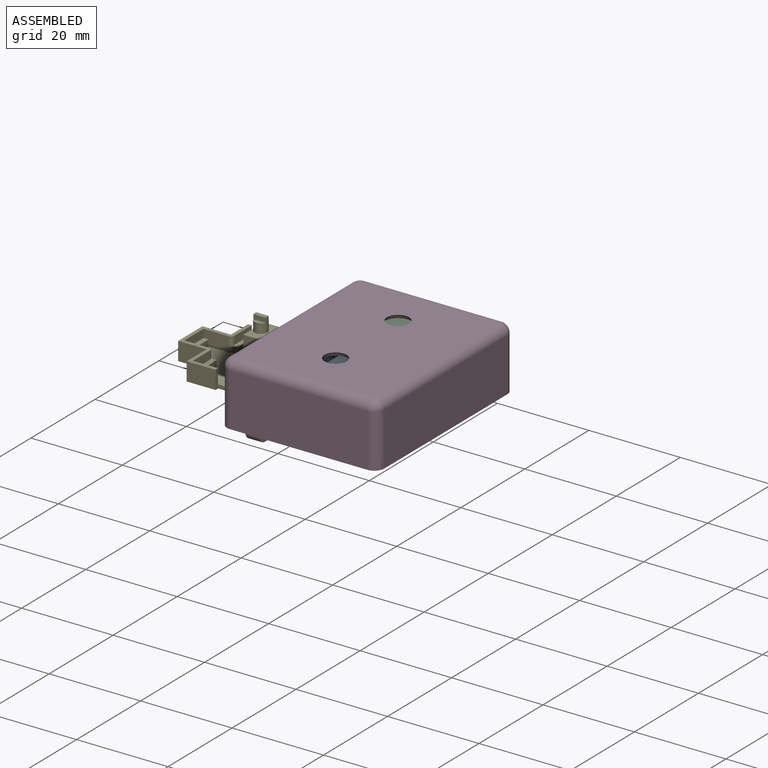
[diagram: assembled view]
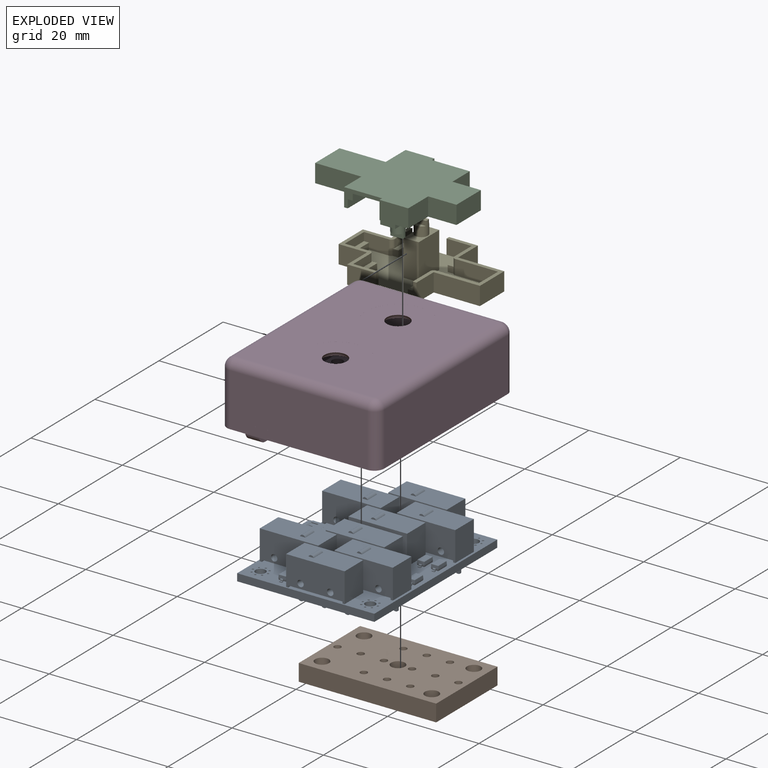
[diagram: exploded view]
GUIDED TOUR — FREECAD ASSEMBLY "thumb-cluster"

This assembly has 5 components, labeled P0..P4 below (a component is one placed body or linked part; the same part can appear more than once), held together by 0 modeled joints plus 7 derived contact edges. A joint is a constraint between two components; its type names the relative motion it leaves free:
  CONTACT — a derived adjacency edge — the two components touch in the source model (clearance under 2% of the assembly's diagonal); it is measured from the geometry, not a modeled constraint.
Axis/direction vectors are unit vectors and 'through' points are millimeter coordinates, both in the assembly's world frame.

MATES
  1. CONTACT "contact_0_1": P0 <-> P1, contact direction (0.000, 0.000, -1.000) through (16.36, -8.97, 0.00) mm (derived from contact, not a modeled constraint)
  2. CONTACT "contact_0_2": P0 <-> P2, contact direction (0.185, 0.982, -0.032) through (15.94, -8.46, 0.00) mm (derived from contact, not a modeled constraint)
  3. CONTACT "contact_0_3": P0 <-> P3, contact direction (0.000, 0.000, 1.000) through (2.78, -4.70, 0.00) mm (derived from contact, not a modeled constraint)
  4. CONTACT "contact_1_2": P1 <-> P2, contact direction (0.000, 0.000, 1.000) through (14.66, -8.14, 0.00) mm (derived from contact, not a modeled constraint)
  5. CONTACT "contact_1_3": P1 <-> P3, contact direction (-0.185, -0.982, 0.032) through (4.30, -2.42, -2.45) mm (derived from contact, not a modeled constraint)
  6. CONTACT "contact_2_3": P2 <-> P3, contact direction (-0.185, -0.982, 0.032) through (9.52, -13.56, 8.85) mm (derived from contact, not a modeled constraint)
  7. CONTACT "contact_3_4": P3 <-> P4, contact direction (-0.977, 0.180, -0.117) through (0.64, -5.93, -8.57) mm (derived from contact, not a modeled constraint)

ASSEMBLY ORDER
  1. P3 — the base component [order heuristic]
  2. P0 — core [order heuristic]
  3. P2 — core [order heuristic]
  4. P1 — core [order heuristic]
  5. P4 [order verified]
Order-tag legend:
  [order verified] — this step's position reverses a verified removal order: the component was checked to insert without passing through the ones already placed.
  [order heuristic] — the first 4 components form the assembly's core: parts whose collision-free extraction could not be verified, listed in mate-graph order.

Of the 5 components, 3 carry a construction recipe — the FreeCAD feature program (sketches with constraints, then the solid features that consume them) that regenerates the part from scratch, quoted from this document or from the linked companion document it references; the rest are supplied as boundary geometry only. The tour below walks the components in assembly order: each is shown spotlighted twice — in the assembled view, then in the exploded view, where a leader line traces a displaced component back to its assembled socket (components that stay in place when exploded have no leader line; saturated green if recipe-attached, orange if geometry-only; every other component desaturated gray) — followed by its recipe or geometry summary and the mates that hold it.
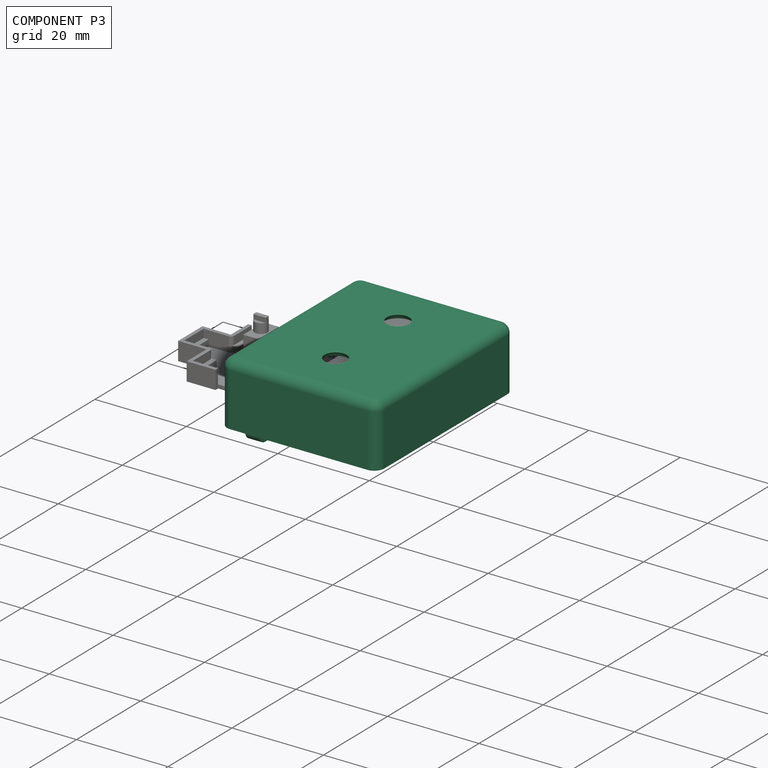
[diagram: component P3 — assembled]
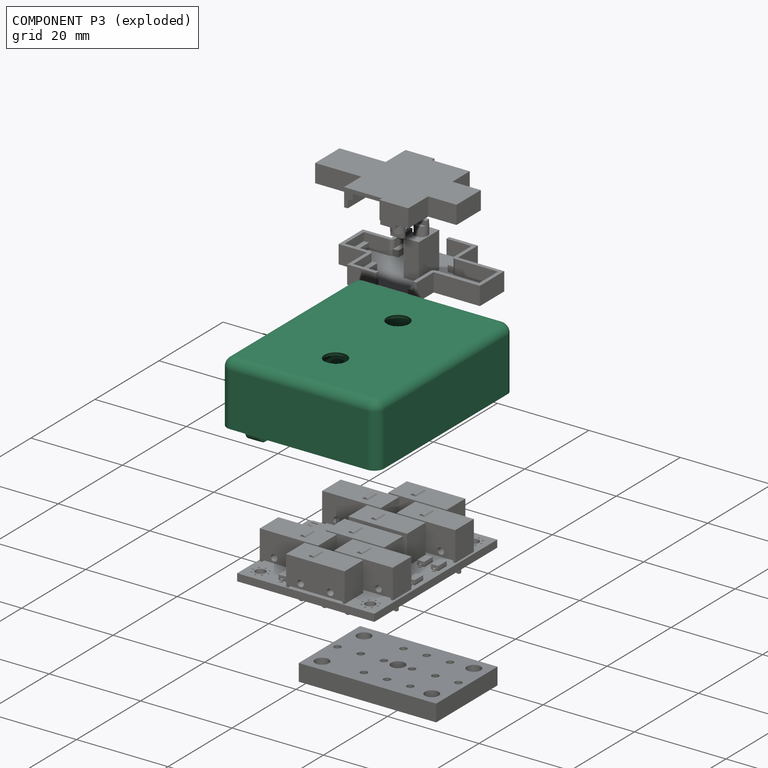
[diagram: component P3 — exploded]
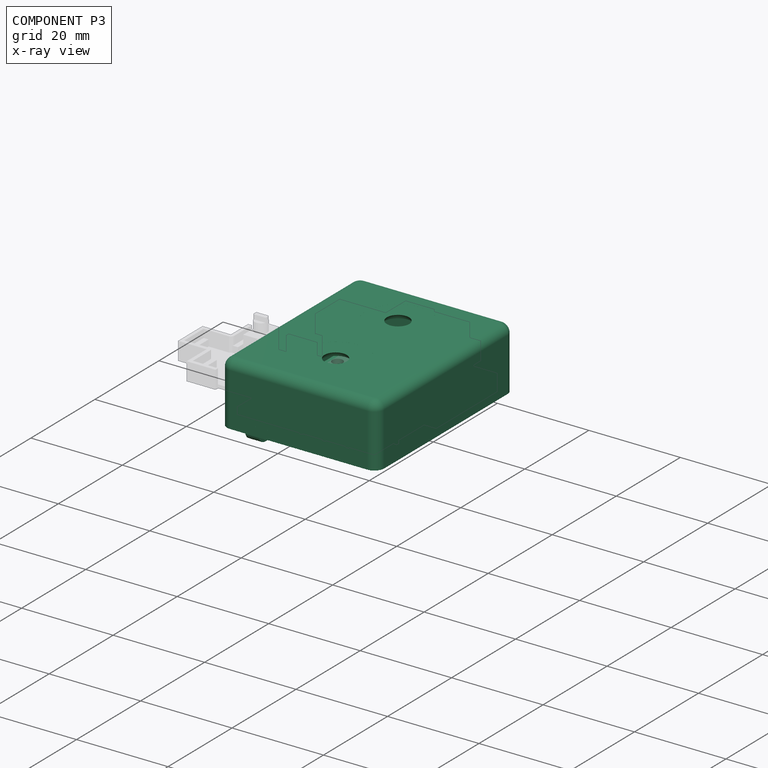
[diagram: component P3 — x-ray view]
COMPONENT P3 — recipe-attached ("case", modeled in this document).
Held by: resting contact with P0 (derived edge); resting contact with P1 (derived edge); resting contact with P2 (derived edge); resting contact with P4 (derived edge).
Construction recipe (the document's own serialized feature program — sketch geometry with constraints, then the solid features built on it; lengths are millimeters unless a unit is written):

FEATURE [PartDesign::SubShapeBinder] Binder
  BindCopyOnChange = 0
  BindMode = 0
  ClaimChildren = false
  Context = -> Part [Body.Binder.]
  Fuse = false
  MakeFace = true
  OffsetFill = false
  OffsetIntersection = false
  OffsetJoinType = 0
  OffsetOpenResult = false
  PartialLoad = false
  Refine = true
  Relative = true
  Support = -> [Board_58ce[Board_Geoms_58ce.Pcb_58ce.Face68]]
  _Version = 2
FEATURE [Sketcher::SketchObject] Sketch001
  ArcFitTolerance = 1e-06
  ExternalGeometry = -> [Binder]
  FullyConstrained = true
  MakeInternals = false
  MapMode = 5
  Placement = pos=(0,0,-3.6) rot=(1,0,0;3.14159rad)
  sketch-geometry (28):
    g0: Circle CenterX=11.82 CenterY=35.2 CenterZ=0 NormalX=0 NormalY=0 NormalZ=1 AngleXU=0 Radius=1.15
    g1: Circle CenterX=16.9 CenterY=35.2 CenterZ=0 NormalX=0 NormalY=0 NormalZ=1 AngleXU=0 Radius=1.15
    g2: Circle CenterX=21.98 CenterY=35.2 CenterZ=0 NormalX=0 NormalY=0 NormalZ=1 AngleXU=0 Radius=1.15
    g3: Circle CenterX=1.72 CenterY=29 CenterZ=0 NormalX=0 NormalY=0 NormalZ=1 AngleXU=0 Radius=1.15
    g4: Circle CenterX=6.8 CenterY=29 CenterZ=0 NormalX=0 NormalY=0 NormalZ=1 AngleXU=0 Radius=1.15
    g5: Circle CenterX=11.88 CenterY=29 CenterZ=0 NormalX=0 NormalY=0 NormalZ=1 AngleXU=0 Radius=1.15
    g6: Circle CenterX=18.02 CenterY=29 CenterZ=0 NormalX=0 NormalY=0 NormalZ=1 AngleXU=0 Radius=1.15
    g7: Circle CenterX=23.1 CenterY=29 CenterZ=0 NormalX=0 NormalY=0 NormalZ=1 AngleXU=0 Radius=1.15
    g8: Circle CenterX=28.18 CenterY=29 CenterZ=0 NormalX=0 NormalY=0 NormalZ=1 AngleXU=0 Radius=1.15
    g9: Circle CenterX=11.82 CenterY=22.8 CenterZ=0 NormalX=0 NormalY=0 NormalZ=1 AngleXU=0 Radius=1.15
    g10: Circle CenterX=16.9 CenterY=22.8 CenterZ=0 NormalX=0 NormalY=0 NormalZ=1 AngleXU=0 Radius=1.15
    g11: Circle CenterX=21.98 CenterY=22.8 CenterZ=0 NormalX=0 NormalY=0 NormalZ=1 AngleXU=0 Radius=1.15
    g12: Circle CenterX=11.85 CenterY=15.75 CenterZ=0 NormalX=0 NormalY=0 NormalZ=1 AngleXU=0 Radius=1.15
    g13: Circle CenterX=16.93 CenterY=15.75 CenterZ=0 NormalX=0 NormalY=0 NormalZ=1 AngleXU=0 Radius=1.15
    g14: Circle CenterX=22.01 CenterY=15.75 CenterZ=0 NormalX=0 NormalY=0 NormalZ=1 AngleXU=0 Radius=1.15
    g15: Circle CenterX=1.75 CenterY=9.55 CenterZ=0 NormalX=0 NormalY=0 NormalZ=1 AngleXU=0 Radius=1.15
    g16: Circle CenterX=6.83 CenterY=9.55 CenterZ=0 NormalX=0 NormalY=0 NormalZ=1 AngleXU=0 Radius=1.15
    g17: Circle CenterX=11.91 CenterY=9.55 CenterZ=0 NormalX=0 NormalY=0 NormalZ=1 AngleXU=0 Radius=1.15
    g18: Circle CenterX=18.05 CenterY=9.55 CenterZ=0 NormalX=0 NormalY=0 NormalZ=1 AngleXU=0 Radius=1.15
    g19: Circle CenterX=23.13 CenterY=9.55 CenterZ=0 NormalX=0 NormalY=0 NormalZ=1 AngleXU=0 Radius=1.15
    g20: Circle CenterX=28.21 CenterY=9.55 CenterZ=0 NormalX=0 NormalY=0 NormalZ=1 AngleXU=0 Radius=1.15
    g21: Circle CenterX=22.01 CenterY=3.35 CenterZ=0 NormalX=0 NormalY=0 NormalZ=1 AngleXU=0 Radius=1.15
    g22: Circle CenterX=16.93 CenterY=3.35 CenterZ=0 NormalX=0 NormalY=0 NormalZ=1 AngleXU=0 Radius=1.15
    g23: Circle CenterX=11.85 CenterY=3.35 CenterZ=0 NormalX=0 NormalY=0 NormalZ=1 AngleXU=0 Radius=1.15
    g24: Circle CenterX=3 CenterY=35.3667 CenterZ=0 NormalX=0 NormalY=0 NormalZ=1 AngleXU=0 Radius=1.25
    g25: Circle CenterX=27 CenterY=35.3667 CenterZ=0 NormalX=0 NormalY=0 NormalZ=1 AngleXU=0 Radius=1.25
    g26: Circle CenterX=27 CenterY=3.01673 CenterZ=0 NormalX=0 NormalY=0 NormalZ=1 AngleXU=0 Radius=1.25
    g27: Circle CenterX=2.98327 CenterY=3.01673 CenterZ=0 NormalX=0 NormalY=0 NormalZ=1 AngleXU=0 Radius=1.25
  constraints (56):
    c: Coincident(g0,g-3)
    c: Coincident(g1,g-4)
    c: Coincident(g2,g-5)
    c: Coincident(g3,g-11)
    c: Coincident(g4,g-10)
    c: Coincident(g5,g-9)
    c: Coincident(g6,g-8)
    c: Coincident(g7,g-7)
    c: Coincident(g8,g-6)
    c: Coincident(g9,g-14)
    c: Coincident(g10,g-13)
    c: Coincident(g11,g-12)
    c: Coincident(g12,g-17)
    c: Coincident(g13,g-16)
    c: Coincident(g14,g-15)
    c: Coincident(g15,g-18)
    c: Coincident(g16,g-19)
    c: Coincident(g17,g-20)
    c: Coincident(g18,g-21)
    c: Coincident(g19,g-22)
    c: Coincident(g20,g-23)
    c: Coincident(g21,g-24)
    c: Coincident(g22,g-25)
    c: Coincident(g23,g-26)
    c: Coincident(g24,g-27)
    c: Coincident(g25,g-28)
    c: Coincident(g26,g-29)
    c: Coincident(g27,g-30)
    c: Diameter(g24) = 2.5
    c: Equal(g24,g25)
    c: Equal(g25,g26)
    c: Equal(g26,g27)
    c: Diameter(g0) = 2.3
    c: Equal(g0,g1)
    c: Equal(g1,g2)
    c: Equal(g2,g8)
    c: Equal(g8,g7)
    c: Equal(g7,g6)
    c: Equal(g6,g5)
    c: Equal(g5,g4)
    c: Equal(g4,g3)
    c: Equal(g3,g9)
    c: Equal(g9,g10)
    c: Equal(g10,g11)
    c: Equal(g0,g12)
    c: Equal(g12,g13)
    c: Equal(g13,g14)
    c: Equal(g14,g20)
    c: Equal(g20,g19)
    c: Equal(g19,g18)
    c: Equal(g18,g17)
    c: Equal(g17,g16)
    c: Equal(g16,g15)
    c: Equal(g15,g23)
    c: Equal(g23,g22)
    c: Equal(g22,g21)
FEATURE [PartDesign::SubShapeBinder] Binder001
  BindCopyOnChange = 0
  BindMode = 0
  ClaimChildren = false
  Context = -> Part [Part001.Body001.Binder001.]
  Fuse = false
  MakeFace = true
  OffsetFill = false
  OffsetIntersection = false
  OffsetJoinType = 0
  OffsetOpenResult = false
  PartialLoad = false
  Refine = true
  Relative = true
  Support = -> [Board_58ce[Board_Geoms_58ce.Pcb_58ce.Face68]]
  _Version = 2
FEATURE [Sketcher::SketchObject] Sketch009
  ArcFitTolerance = 1e-06
  AttacherType = Attacher::AttachEngine3D
  FullyConstrained = false
  MakeInternals = false
  MapMode = 5
  Placement = pos=(0,0,-2) rot=(1,0,0;3.14159rad)
  sketch-geometry (4):
    g0: LineSegment StartX=-2.2 StartY=5.91721 StartZ=0 EndX=0.8 EndY=5.91721 EndZ=0
    g1: LineSegment StartX=0.8 StartY=32.7618 StartZ=0 EndX=-2.2 EndY=32.7618 EndZ=0
    g2: LineSegment StartX=0.8 StartY=32.7618 StartZ=0 EndX=0.8 EndY=5.91721 EndZ=0
    g3: LineSegment StartX=-2.2 StartY=5.91721 StartZ=0 EndX=-2.2 EndY=32.7618 EndZ=0
  constraints (10):
    c: Horizontal(g0)
    c: Horizontal(g1)
    c: Coincident(g2,g1)
    c: Coincident(g2,g0)
    c: Vertical(g2)
    c: PointOnObject(g0,g-3)
    c: Coincident(g3,g0)
    c: Coincident(g3,g1)
    c: Vertical(g3)
    c: DistanceX(g0,g0) = 3
FEATURE [Sketcher::SketchObject] Sketch023
  ArcFitTolerance = 1e-06
  FullyConstrained = false
  MakeInternals = false
  Placement = pos=(0,0,0) rot=(0,0,-1;3.14159rad)
  sketch-geometry (8):
    g0: LineSegment StartX=-4e-16 StartY=-2.1 StartZ=0 EndX=-30 EndY=-2.1 EndZ=0
    g1: ArcOfCircle CenterX=-30 CenterY=3.6e-15 CenterZ=0 NormalX=0 NormalY=0 NormalZ=1 AngleXU=1.5708 Radius=2.1 StartAngle=1.5708 EndAngle=3.14159
    g2: LineSegment StartX=-32.1 StartY=4.1e-15 StartZ=0 EndX=-32.1 EndY=38.4 EndZ=0
    g3: ArcOfCircle CenterX=-30 CenterY=38.4 CenterZ=0 NormalX=0 NormalY=0 NormalZ=1 AngleXU=-1e-16 Radius=2.1 StartAngle=1.5708 EndAngle=3.14159
    g4: LineSegment StartX=-30 StartY=40.5 StartZ=0 EndX=3.6e-15 EndY=40.5 EndZ=0
    g5: ArcOfCircle CenterX=7.1e-15 CenterY=38.4 CenterZ=0 NormalX=0 NormalY=0 NormalZ=1 AngleXU=-1.5708 Radius=2.1 StartAngle=1.5708 EndAngle=3.14159
    g6: LineSegment StartX=2.1 StartY=38.4 StartZ=0 EndX=2.1 EndY=0 EndZ=0
    g7: ArcOfCircle CenterX=0 CenterY=0 CenterZ=0 NormalX=0 NormalY=0 NormalZ=1 AngleXU=3.14159 Radius=2.1 StartAngle=1.5708 EndAngle=3.14159
  constraints (12):
    c: Horizontal(g0)
    c: Coincident(g0,g1)
    c: Coincident(g1,g2)
    c: Vertical(g2)
    c: Coincident(g2,g3)
    c: Coincident(g3,g4)
    c: Horizontal(g4)
    c: Coincident(g4,g5)
    c: Coincident(g5,g6)
    c: Vertical(g6)
    c: Coincident(g6,g7)
    c: Coincident(g7,g0)
FEATURE [Sketcher::SketchObject] Sketch024
  ArcFitTolerance = 1e-06
  FullyConstrained = false
  MakeInternals = false
  Placement = pos=(0,0,0) rot=(0,0,-1;3.14159rad)
  sketch-geometry (8):
    g0: LineSegment StartX=-4e-16 StartY=-2.2 StartZ=0 EndX=-30 EndY=-2.2 EndZ=0
    g1: ArcOfCircle CenterX=-30 CenterY=3.6e-15 CenterZ=0 NormalX=0 NormalY=0 NormalZ=1 AngleXU=1.5708 Radius=2.2 StartAngle=1.5708 EndAngle=3.14159
    g2: LineSegment StartX=-32.2 StartY=4.1e-15 StartZ=0 EndX=-32.2 EndY=38.4 EndZ=0
    g3: ArcOfCircle CenterX=-30 CenterY=38.4 CenterZ=0 NormalX=0 NormalY=0 NormalZ=1 AngleXU=-1e-16 Radius=2.2 StartAngle=1.5708 EndAngle=3.14159
    g4: LineSegment StartX=-30 StartY=40.6 StartZ=0 EndX=3.6e-15 EndY=40.6 EndZ=0
    g5: ArcOfCircle CenterX=7.1e-15 CenterY=38.4 CenterZ=0 NormalX=0 NormalY=0 NormalZ=1 AngleXU=-1.5708 Radius=2.2 StartAngle=1.5708 EndAngle=3.14159
    g6: LineSegment StartX=2.2 StartY=38.4 StartZ=0 EndX=2.2 EndY=0 EndZ=0
    g7: ArcOfCircle CenterX=0 CenterY=0 CenterZ=0 NormalX=0 NormalY=0 NormalZ=1 AngleXU=3.14159 Radius=2.2 StartAngle=1.5708 EndAngle=3.14159
  constraints (12):
    c: Horizontal(g0)
    c: Coincident(g0,g1)
    c: Coincident(g1,g2)
    c: Vertical(g2)
    c: Coincident(g2,g3)
    c: Coincident(g3,g4)
    c: Horizontal(g4)
    c: Coincident(g4,g5)
    c: Coincident(g5,g6)
    c: Vertical(g6)
    c: Coincident(g6,g7)
    c: Coincident(g7,g0)
FEATURE [PartDesign::Pad] Pad012
  Direction = (0,0,1)
  Length = 11.603
  Length2 = 10
  Placement = pos=(0,0,0) rot=(0,0,-1;3.14159rad)
  Profile = -> Sketch024
  ReferenceAxis = -> Sketch024 [N_Axis]
  Refine = true
  Suppressed = false
  Type = 0
  expr: Length = <<vars>>#VarSet.Base_recess_height + <<vars>>#VarSet.pcb_thickness
FEATURE [PartDesign::Thickness] Thickness001
  Base = -> Pad012 [Face9]
  BaseFeature = -> Pad012
  Intersection = false
  Join = 0
  Mode = 0
  Refine = true
  Reversed = true
  SupportTransform = false
  Suppressed = false
  Value = 2
FEATURE [Sketcher::SketchObject] Sketch003
  ArcFitTolerance = 1e-06
  AttacherType = Attacher::AttachEngine3D
  AttachmentSupport = -> [Thickness001]
  ExternalGeometry = -> [Binder001]
  FullyConstrained = true
  MakeInternals = false
  MapMode = 5
  Placement = pos=(0,0,9.603) rot=(1,0,0;3.14159rad)
  sketch-geometry (8):
    g0: Circle CenterX=3 CenterY=35.3667 CenterZ=0 NormalX=0 NormalY=0 NormalZ=1 AngleXU=0 Radius=1.7
    g1: Circle CenterX=27 CenterY=35.3667 CenterZ=0 NormalX=0 NormalY=0 NormalZ=1 AngleXU=0 Radius=1.7
    g2: Circle CenterX=27 CenterY=3.01673 CenterZ=0 NormalX=0 NormalY=0 NormalZ=1 AngleXU=0 Radius=1.7
    g3: Circle CenterX=2.98327 CenterY=3.01673 CenterZ=0 NormalX=0 NormalY=0 NormalZ=1 AngleXU=0 Radius=1.7
    g4: Circle CenterX=3 CenterY=35.3667 CenterZ=0 NormalX=0 NormalY=0 NormalZ=1 AngleXU=0 Radius=3
    g5: Circle CenterX=27 CenterY=35.3667 CenterZ=0 NormalX=0 NormalY=0 NormalZ=1 AngleXU=0 Radius=3
    g6: Circle CenterX=27 CenterY=3.01673 CenterZ=0 NormalX=0 NormalY=0 NormalZ=1 AngleXU=0 Radius=3
    g7: Circle CenterX=2.98327 CenterY=3.01673 CenterZ=0 NormalX=0 NormalY=0 NormalZ=1 AngleXU=0 Radius=3
  constraints (16):
    c: Coincident(g0,g-3)
    c: Coincident(g1,g-4)
    c: Coincident(g2,g-5)
    c: Coincident(g3,g-6)
    c: Diameter(g0) = 3.4
    c: Equal(g0,g1)
    c: Equal(g1,g2)
    c: Equal(g2,g3)
    c: Diameter(g4) = 6
    c: Coincident(g4,g0)
    c: Diameter(g5) = 6
    c: Coincident(g5,g1)
    c: Diameter(g6) = 6
    c: Coincident(g6,g2)
    c: Diameter(g7) = 6
    c: Coincident(g7,g3)
FEATURE [PartDesign::Pad] Pad002
  BaseFeature = -> Thickness001
  Direction = (0,0,-1)
  Length = 8.003
  Length2 = 10
  Profile = -> Sketch003
  ReferenceAxis = -> Sketch003 [N_Axis]
  Refine = true
  Suppressed = false
  Type = 0
  expr: Length = <<vars>>#VarSet.Base_recess_height - <<vars>>#VarSet.wall_thickness
FEATURE [Sketcher::SketchObject] Sketch004
  ArcFitTolerance = 1e-06
  AttacherType = Attacher::AttachEngine3D
  AttachmentSupport = -> [Pad002]
  ExternalGeometry = -> [Binder001]
  FullyConstrained = true
  MakeInternals = false
  MapMode = 5
  Placement = pos=(0,0,11.603) rot=(0,0,1;0rad)
  sketch-geometry (4):
    g0: Circle CenterX=14.98 CenterY=-9.55 CenterZ=0 NormalX=0 NormalY=0 NormalZ=1 AngleXU=0 Radius=6.95
    g1: Circle CenterX=14.95 CenterY=-29 CenterZ=0 NormalX=0 NormalY=0 NormalZ=1 AngleXU=0 Radius=6.95
    g2: GeomPoint X=14.98 Y=-9.55 Z=0
    g3: GeomPoint X=14.95 Y=-29 Z=0
  constraints (6):
    c: Diameter(g0) = 13.9
    c: Coincident(g0,g-3)
    c: Coincident(g1,g-4)
    c: Coincident(g2,g0)
    c: Coincident(g3,g1)
    c: Equal(g1,g0)
FEATURE [PartDesign::Pocket] Pocket001
  BaseFeature = -> Pad002
  Direction = (0,0,-1)
  Length = 5
  Length2 = 5
  Profile = -> Sketch004
  ReferenceAxis = -> Sketch004 [N_Axis]
  Refine = true
  Suppressed = false
  Type = 0
FEATURE [Sketcher::SketchObject] Sketch005
  ArcFitTolerance = 1e-06
  AttacherType = Attacher::AttachEngine3D
  AttachmentSupport = -> [Pocket001]
  FullyConstrained = false
  MakeInternals = false
  MapMode = 5
  Placement = pos=(-2.2,0,0) rot=(0.57735,-0.57735,-0.57735;2.0944rad)
  sketch-geometry (8):
    g0: LineSegment StartX=14.9395 StartY=0 StartZ=0 EndX=23.7488 EndY=0 EndZ=0
    g1: LineSegment StartX=23.7488 StartY=0 StartZ=0 EndX=23.7488 EndY=3.27657 EndZ=0
    g2: LineSegment StartX=22.6841 StartY=4.34131 StartZ=0 EndX=16.0197 EndY=4.34131 EndZ=0
    g3: LineSegment StartX=14.9395 StartY=3.26112 StartZ=0 EndX=14.9395 EndY=0 EndZ=0
    g4: ArcOfCircle CenterX=16.0197 CenterY=3.26112 CenterZ=0 NormalX=0 NormalY=0 NormalZ=1 AngleXU=0 Radius=1.08019 StartAngle=1.5708 EndAngle=3.14159
    g5: GeomPoint [constr] X=14.9395 Y=4.34131 Z=0
    g6: ArcOfCircle CenterX=22.6841 CenterY=3.27657 CenterZ=0 NormalX=0 NormalY=0 NormalZ=1 AngleXU=0 Radius=1.06474 StartAngle=0 EndAngle=1.5708
    g7: GeomPoint [constr] X=23.7488 Y=4.34131 Z=0
  constraints (15):
    c: Coincident(g0,g1)
    c: Coincident(g3,g0)
    c: Horizontal(g0)
    c: Horizontal(g2)
    c: Vertical(g1)
    c: Vertical(g3)
    c: PointOnObject(g0,g-1)
    c: PointOnObject(g5,g2)
    c: PointOnObject(g5,g3)
    c: Tangent(g2,g4) = -1.5708
    c: Tangent(g3,g4) = -1.5708
    c: PointOnObject(g7,g1)
    c: PointOnObject(g7,g2)
    c: Tangent(g1,g6) = -1.5708
    c: Tangent(g2,g6) = -1.5708
FEATURE [PartDesign::Pocket] Pocket002
  BaseFeature = -> Pocket001
  Direction = (1,0,0)
  Length = 2
  Length2 = 5
  Profile = -> Sketch005
  ReferenceAxis = -> Sketch005 [N_Axis]
  Refine = true
  Suppressed = false
  Type = 0
FEATURE [PartDesign::Fillet] Fillet
  Base = -> Pocket002 [Edge28]
  BaseFeature = -> Pocket002
  Radius = 2
  Refine = true
  SupportTransform = false
  Suppressed = false
  UseAllEdges = false
FEATURE [PartDesign::Chamfer] Chamfer001
  Angle = 45
  Base = -> Fillet [Edge38]
  BaseFeature = -> Fillet
  ChamferType = 0
  FlipDirection = false
  Refine = true
  Size = 1
  Size2 = 1
  SupportTransform = false
  Suppressed = false
  UseAllEdges = false
FEATURE [Sketcher::SketchObject] Sketch022
  ArcFitTolerance = 1e-06
  AttachmentSupport = -> [Pad002]
  FullyConstrained = true
  MakeInternals = false
  MapMode = 5
  Placement = pos=(0,0,9.603) rot=(1,0,0;3.14159rad)
FEATURE [PartDesign::Pad] Pad011
  BaseFeature = -> Chamfer001
  Direction = (-1,0,0)
  Length = 10
  Length2 = 10
  Profile = -> Sketch005
  ReferenceAxis = -> Sketch005 [N_Axis]
  Refine = true
  Suppressed = false
  Type = 0
FEATURE [PartDesign::Body] Body001  label="top"
  AllowCompound = false
  Group = -> [Pad012,Binder001,Thickness001,Sketch003,Pad002,Sketch004,Pocket001,Sketch005,Pocket002,Fillet,Chamfer001,Sketch022,Sketch023,Pad011,Sketch024]
  Origin = -> Origin013
  Placement = pos=(0,0,-1.6) rot=(0,0,1;0rad)
  Tip = -> Pad011
FEATURE [Sketcher::SketchObject] Sketch025
  ArcFitTolerance = 1e-06
  FullyConstrained = false
  MakeInternals = false
  Placement = pos=(0,0,0) rot=(0,0,-1;3.14159rad)
  sketch-geometry (8):
    g0: LineSegment StartX=-4e-16 StartY=-2.2 StartZ=0 EndX=-30 EndY=-2.2 EndZ=0
    g1: ArcOfCircle CenterX=-30 CenterY=3.6e-15 CenterZ=0 NormalX=0 NormalY=0 NormalZ=1 AngleXU=1.5708 Radius=2.2 StartAngle=1.5708 EndAngle=3.14159
    g2: LineSegment StartX=-32.2 StartY=3.9e-15 StartZ=0 EndX=-32.2 EndY=38.4 EndZ=0
    g3: ArcOfCircle CenterX=-30 CenterY=38.4 CenterZ=0 NormalX=0 NormalY=0 NormalZ=1 AngleXU=-1e-16 Radius=2.2 StartAngle=1.5708 EndAngle=3.14159
    g4: LineSegment StartX=-30 StartY=40.6 StartZ=0 EndX=7.1e-15 EndY=40.6 EndZ=0
    g5: ArcOfCircle CenterX=7.1e-15 CenterY=38.4 CenterZ=0 NormalX=0 NormalY=0 NormalZ=1 AngleXU=-1.5708 Radius=2.2 StartAngle=1.5708 EndAngle=3.14159
    g6: LineSegment StartX=2.2 StartY=38.4 StartZ=0 EndX=2.2 EndY=0 EndZ=0
    g7: ArcOfCircle CenterX=0 CenterY=0 CenterZ=0 NormalX=0 NormalY=0 NormalZ=1 AngleXU=3.14159 Radius=2.2 StartAngle=1.5708 EndAngle=3.14159
  constraints (12):
    c: Horizontal(g0)
    c: Coincident(g0,g1)
    c: Coincident(g1,g2)
    c: Vertical(g2)
    c: Coincident(g2,g3)
    c: Coincident(g3,g4)
    c: Horizontal(g4)
    c: Coincident(g4,g5)
    c: Coincident(g5,g6)
    c: Vertical(g6)
    c: Coincident(g6,g7)
    c: Coincident(g7,g0)
FEATURE [PartDesign::Pad] Pad013
  Direction = (0,0,1)
  Length = 2
  Length2 = 10
  Placement = pos=(0,0,0) rot=(0,0,-1;3.14159rad)
  Profile = -> Sketch025
  ReferenceAxis = -> Sketch025 [N_Axis]
  Refine = true
  Reversed = true
  Suppressed = false
  Type = 0
FEATURE [PartDesign::Pocket] Pocket
  BaseFeature = -> Pad013
  Direction = (0,1e-16,1)
  Length = 2
  Length2 = 5
  Placement = pos=(0,0,0) rot=(0,0,-1;3.14159rad)
  Profile = -> Sketch001
  ReferenceAxis = -> Sketch001 [N_Axis]
  Refine = true
  Suppressed = false
  Type = 1
FEATURE [PartDesign::Chamfer] Chamfer
  Angle = 45
  Base = -> Pocket [Edge49,Edge58,Edge76,Edge66]
  BaseFeature = -> Pocket
  ChamferType = 1
  FlipDirection = false
  Placement = pos=(0,0,0) rot=(0,0,-1;3.14159rad)
  Refine = true
  Size = 0.75
  Size2 = 1.5
  SupportTransform = false
  Suppressed = false
  UseAllEdges = false
FEATURE [PartDesign::Pad] Pad004
  BaseFeature = -> Chamfer
  Direction = (0,-1e-16,-1)
  Length = 6
  Length2 = 10
  Placement = pos=(0,0,0) rot=(0,0,-1;3.14159rad)
  Profile = -> Sketch009
  ReferenceAxis = -> Sketch009 [N_Axis]
  Refine = true
  Suppressed = false
  Type = 0
FEATURE [Sketcher::SketchObject] Sketch010
  ArcFitTolerance = 1e-06
  AttachmentSupport = -> [Pad004]
  ExternalGeometry = -> [Pad004]
  FullyConstrained = true
  MakeInternals = false
  MapMode = 5
  Placement = pos=(0.8,0,0) rot=(0.57735,0.57735,0.57735;2.0944rad)
  sketch-geometry (5):
    g0: LineSegment [constr] StartX=-32.7618 StartY=-5 StartZ=0 EndX=-23.7618 EndY=-5 EndZ=0
    g1: LineSegment [constr] StartX=-14.9172 StartY=-5 StartZ=0 EndX=-5.91721 EndY=-5 EndZ=0
    g2: Circle CenterX=-28.2618 CenterY=-5 CenterZ=0 NormalX=0 NormalY=0 NormalZ=1 AngleXU=0 Radius=1.7
    g3: Circle CenterX=-10.4172 CenterY=-5 CenterZ=0 NormalX=0 NormalY=0 NormalZ=1 AngleXU=0 Radius=1.7
    g4: LineSegment [constr] StartX=-28.2618 StartY=-5 StartZ=0 EndX=-10.4172 EndY=-5 EndZ=0
  constraints (10):
    c: Diameter(g2) = 3.4
    c: Symmetric(g0,g0,g2)
    c: Diameter(g3) = 3.4
    c: Symmetric(g1,g1,g3)
    c: Coincident(g4,g2)
    c: Coincident(g4,g3)
    c: Symmetric(g-4,g-4,g0)
    c: Symmetric(g-3,g-3,g0)
    c: Symmetric(g-5,g-5,g1)
    c: Symmetric(g-6,g-6,g1)
FEATURE [PartDesign::Pocket] Pocket005
  BaseFeature = -> Pad004
  Direction = (-1,0,0)
  Length = 5
  Length2 = 5
  Placement = pos=(0,0,0) rot=(0,0,-1;3.14159rad)
  Profile = -> Sketch010
  ReferenceAxis = -> Sketch010 [N_Axis]
  Refine = true
  Suppressed = false
  Type = 1
FEATURE [Sketcher::SketchObject] Sketch
  ArcFitTolerance = 1e-06
  AttachmentSupport = -> [Pocket005]
  ExternalGeometry = -> [Pocket005]
  FullyConstrained = false
  MakeInternals = false
  MapMode = 5
  Placement = pos=(0,0,0) rot=(0,0,1;3.14159rad)
  sketch-geometry (4):
    g0: LineSegment StartX=2.2 StartY=16.8359 StartZ=0 EndX=2.2 EndY=21.8359 EndZ=0
    g1: LineSegment StartX=2.2 StartY=21.8359 StartZ=0 EndX=0.7 EndY=21.8359 EndZ=0
    g2: LineSegment StartX=0.7 StartY=21.8359 StartZ=0 EndX=0.7 EndY=16.8359 EndZ=0
    g3: LineSegment StartX=0.7 StartY=16.8359 StartZ=0 EndX=2.2 EndY=16.8359 EndZ=0
  constraints (11):
    c: Coincident(g0,g1)
    c: Coincident(g1,g2)
    c: Coincident(g2,g3)
    c: Coincident(g3,g0)
    c: Vertical(g0)
    c: Vertical(g2)
    c: Horizontal(g1)
    c: Horizontal(g3)
    c: Distance(g0,g2) = 1.5
    c: Distance(g1,g3) = 5
    c: PointOnObject(g0,g-3)
FEATURE [PartDesign::Pocket] Pocket007
  BaseFeature = -> Pocket005
  Direction = (0,0,-1)
  Length = 5
  Length2 = 5
  Placement = pos=(0,0,0) rot=(0,0,-1;3.14159rad)
  Profile = -> Sketch
  ReferenceAxis = -> Sketch [N_Axis]
  Refine = true
  Suppressed = false
  Type = 1
FEATURE [PartDesign::Fillet] Fillet001
  Base = -> Pocket007 [Edge78,Edge64]
  BaseFeature = -> Pocket007
  Placement = pos=(0,0,0) rot=(0,0,-1;3.14159rad)
  Radius = 2
  Refine = true
  SupportTransform = false
  Suppressed = false
  UseAllEdges = false
FEATURE [PartDesign::Body] Body  label="base"
  AllowCompound = false
  Group = -> [Pad013,Sketch001,Binder,Pocket,Chamfer,Sketch009,Pad004,Sketch010,Pocket005,Sketch025,Sketch,Pocket007,Fillet001]
  Origin = -> Origin011
  Placement = pos=(0,0,-1.6) rot=(0,0,1;0rad)
  Tip = -> Fillet001
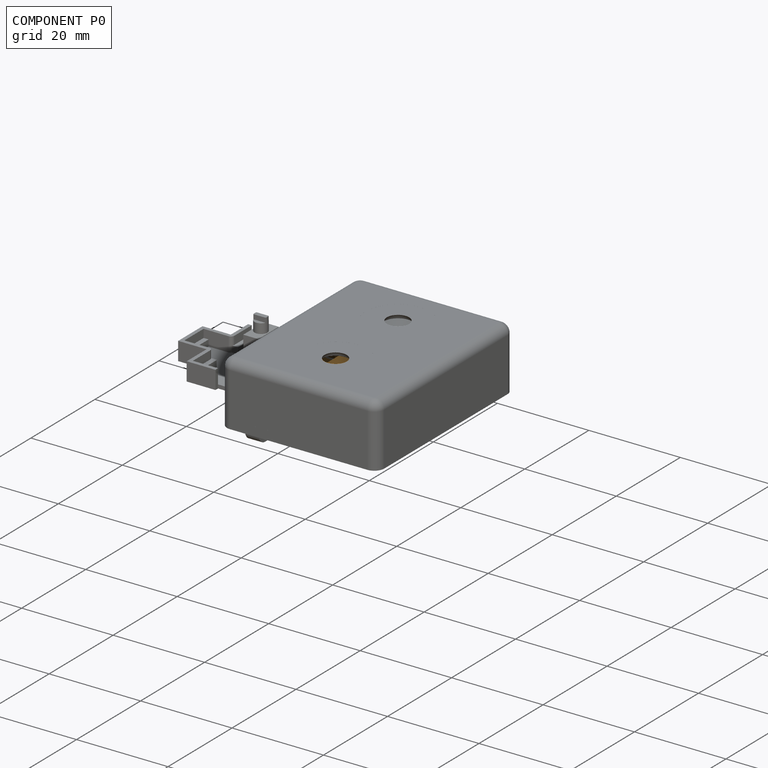
[diagram: component P0 — assembled]
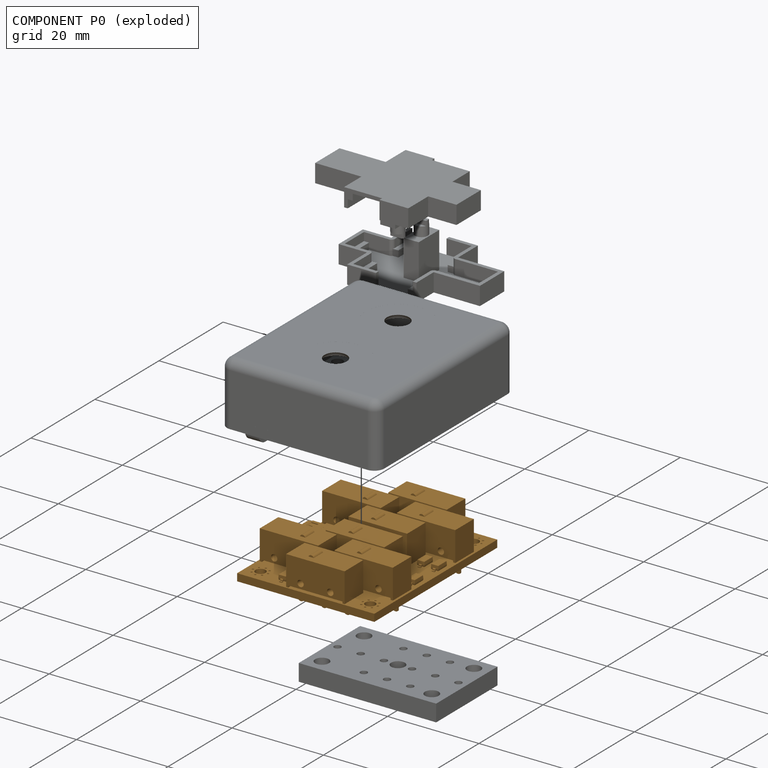
[diagram: component P0 — exploded]
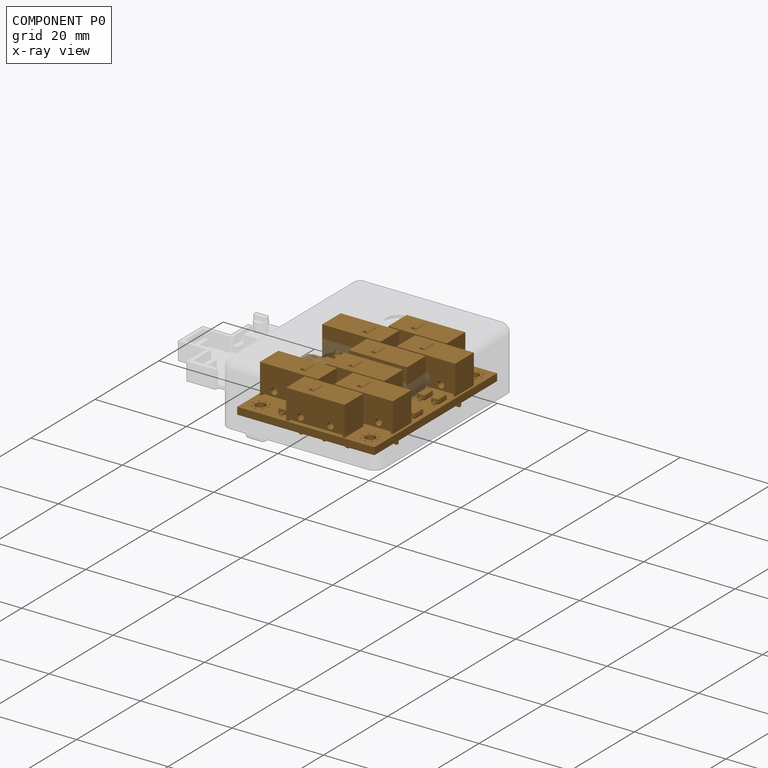
[diagram: component P0 — x-ray view]
COMPONENT P0 — geometry summary ("thumb-cluster"; no construction recipe available for this part):
  bounding box: 38.4 x 30.0 x 10.4 mm
  tessellated surface: 49,452 triangles
  volume: 5393 mm^3 (45% of its bounding box)
  symmetry: mirror-symmetric across its y mid-plane
Held by: resting contact with P1 (derived edge); resting contact with P2 (derived edge); resting contact with P3 (derived edge).
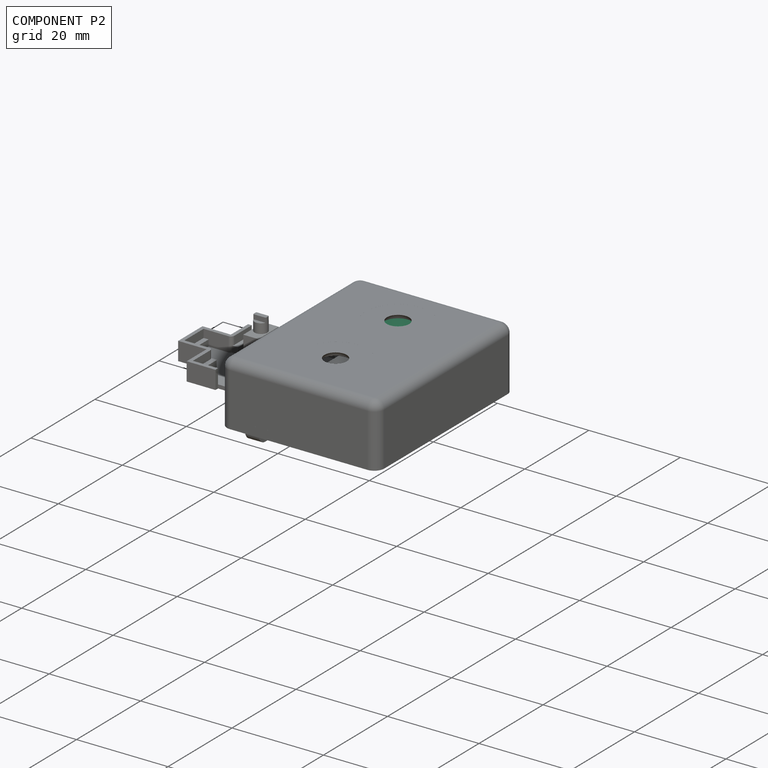
[diagram: component P2 — assembled]
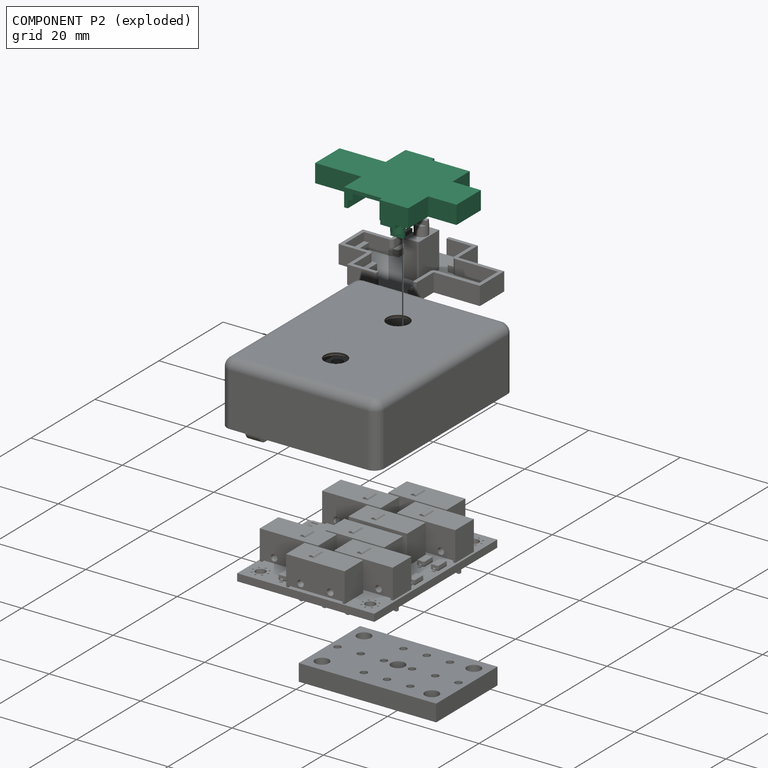
[diagram: component P2 — exploded]
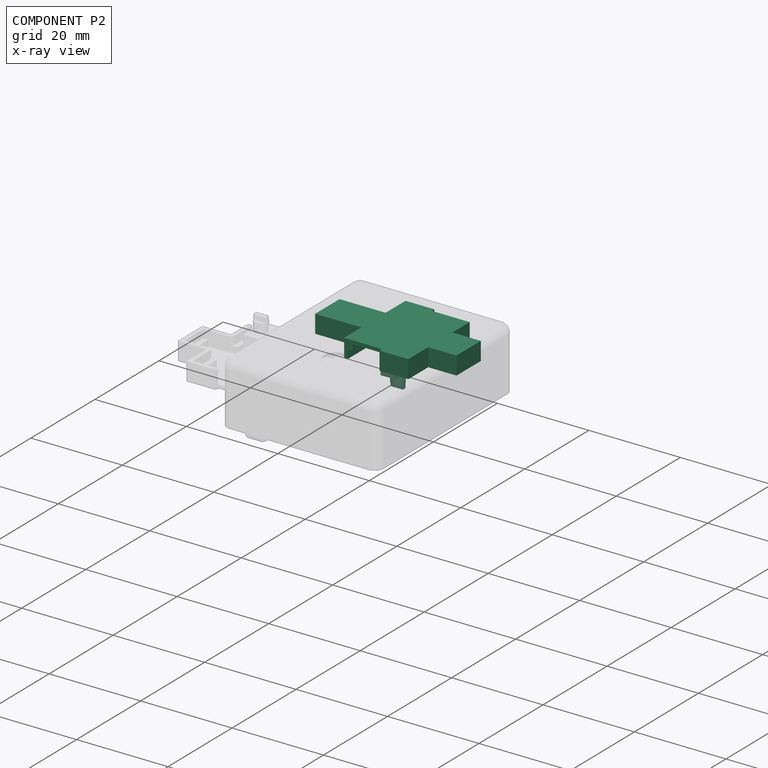
[diagram: component P2 — x-ray view]
COMPONENT P2 — recipe-attached ("switch-aligner", modeled in this document).
Held by: resting contact with P0 (derived edge); resting contact with P1 (derived edge); resting contact with P3 (derived edge).
Construction recipe (the document's own serialized feature program — sketch geometry with constraints, then the solid features built on it; lengths are millimeters unless a unit is written):

FEATURE [PartDesign::SubShapeBinder] Binder002
  BindCopyOnChange = 0
  BindMode = 0
  ClaimChildren = false
  Context = -> Body003 [Binder002.]
  Fuse = false
  MakeFace = true
  OffsetFill = false
  OffsetIntersection = false
  OffsetJoinType = 0
  OffsetOpenResult = false
  PartialLoad = false
  Refine = true
  Relative = true
  Support = -> [Board_58ce[Step_Models_58ce.Top_58ce.SW2_D2FC_F_7N_60M_8f2af3d61e4a_ln_006.Part__Feature021.Face59,Step_Models_58ce.Top_58ce.SW2_D2FC_F_7N_60M_8f2af3d61e4a_ln_003.Part__Feature021.Face59,Step_Models_58ce.Top_58ce.SW2_D2FC_F_7N_60M_8f2af3d61e4a_ln_005.Part__Feature021.Face59,Step_Models_58ce.Top_58ce.SW2_D2FC_F_7N_60M_8f2af3d61e4a_ln_004.Part__Feature021.Face59,Board_Geoms_58ce.Pcb_58ce.Edge152]]
  _Version = 2
FEATURE [PartDesign::Plane] DatumPlane
  AttachmentOffset = pos=(0,0,2.2) rot=(0,0,1;0rad)
  AttachmentSupport = -> [Binder002]
  Length = 60
  MapMode = 5
  Placement = pos=(-9e-16,0,8.69) rot=(0,0,1;0rad)
  ResizeMode = 0
  Width = 60
FEATURE [Sketcher::SketchObject] Sketch011
  ArcFitTolerance = 1e-06
  AttachmentSupport = -> [DatumPlane]
  ExternalGeometry = -> [Binder002]
  FullyConstrained = true
  MakeInternals = false
  MapMode = 5
  Placement = pos=(-9e-16,0,8.69) rot=(0,0,1;0rad)
  sketch-geometry (12):
    g0: LineSegment StartX=9.63 StartY=-5.75 StartZ=0 EndX=9.63 EndY=0.45 EndZ=0
    g1: LineSegment StartX=9.63 StartY=0.45 StartZ=0 EndX=24.23 EndY=0.45 EndZ=0
    g2: LineSegment StartX=24.23 StartY=0.45 StartZ=0 EndX=24.23 EndY=-5.75 EndZ=0
    g3: LineSegment StartX=24.23 StartY=-5.75 StartZ=0 EndX=30.43 EndY=-5.75 EndZ=0
    g4: LineSegment StartX=30.43 StartY=-5.75 StartZ=0 EndX=30.43 EndY=-13.35 EndZ=0
    g5: LineSegment StartX=30.43 StartY=-13.35 StartZ=0 EndX=24.23 EndY=-13.35 EndZ=0
    g6: LineSegment StartX=24.23 StartY=-13.35 StartZ=0 EndX=24.23 EndY=-19.55 EndZ=0
    g7: LineSegment StartX=24.23 StartY=-19.55 StartZ=0 EndX=9.63 EndY=-19.55 EndZ=0
    g8: LineSegment StartX=9.63 StartY=-19.55 StartZ=0 EndX=9.63 EndY=-13.35 EndZ=0
    g9: LineSegment StartX=9.63 StartY=-13.35 StartZ=0 EndX=-0.47 EndY=-13.35 EndZ=0
    g10: LineSegment StartX=-0.47 StartY=-13.35 StartZ=0 EndX=-0.47 EndY=-5.75 EndZ=0
    g11: LineSegment StartX=-0.47 StartY=-5.75 StartZ=0 EndX=9.63 EndY=-5.75 EndZ=0
  constraints (36):
    c: Vertical(g0)
    c: Coincident(g0,g1)
    c: Horizontal(g1)
    c: Coincident(g1,g2)
    c: Vertical(g2)
    c: Coincident(g2,g3)
    c: Horizontal(g3)
    c: Coincident(g3,g4)
    c: Vertical(g4)
    c: Coincident(g4,g5)
    c: Horizontal(g5)
    c: Coincident(g5,g6)
    c: Vertical(g6)
    c: Coincident(g6,g7)
    c: Horizontal(g7)
    c: Coincident(g7,g8)
    c: Vertical(g8)
    c: Coincident(g8,g9)
    c: Horizontal(g9)
    c: Coincident(g9,g10)
    c: Vertical(g10)
    c: Coincident(g10,g11)
    c: Coincident(g11,g0)
    c: Horizontal(g11)
    c: Distance(g-4,g0) = 0.9
    c: Distance(g-4,g1) = 0.9
    c: Distance(g-4,g2) = 0.9
    c: Distance(g-10,g3) = 0.9
    c: Distance(g-10,g4) = 0.9
    c: Distance(g-9,g5) = 0.9
    c: Distance(g-8,g6) = 0.9
    c: Distance(g-8,g7) = 0.9
    c: Distance(g-8,g8) = 0.9
    c: Distance(g9,g-6) = 0.9
    c: Distance(g-5,g10) = 0.9
    c: Distance(g11,g-5) = 0.9
FEATURE [PartDesign::Pad] Pad005
  Direction = (0,0,1)
  Length = 4
  Length2 = 10
  Placement = pos=(-9e-16,1.4e-15,8.69) rot=(0,0,1;0rad)
  Profile = -> Sketch011
  ReferenceAxis = -> Sketch011 [N_Axis]
  Refine = true
  Reversed = true
  Suppressed = false
  Type = 0
FEATURE [PartDesign::Thickness] Thickness
  Base = -> Pad005 [Face14]
  BaseFeature = -> Pad005
  Intersection = false
  Join = 0
  Mode = 0
  Refine = true
  Reversed = true
  SupportTransform = false
  Suppressed = false
  Value = 0.8
FEATURE [Sketcher::SketchObject] Sketch012
  ArcFitTolerance = 1e-06
  AttachmentSupport = -> [Thickness]
  ExternalGeometry = -> [Thickness,Binder002]
  FullyConstrained = true
  MakeInternals = false
  MapMode = 5
  Placement = pos=(0,0,7.89) rot=(1,0,0;3.14159rad)
  sketch-geometry (24):
    g0: LineSegment StartX=9.63 StartY=-0.45 StartZ=0 EndX=11.53 EndY=-0.45 EndZ=0
    g1: LineSegment StartX=11.53 StartY=-0.45 StartZ=0 EndX=11.53 EndY=6.25 EndZ=0
    g2: LineSegment StartX=11.53 StartY=6.25 StartZ=0 EndX=9.63 EndY=6.25 EndZ=0
    g3: LineSegment StartX=9.63 StartY=6.25 StartZ=0 EndX=9.63 EndY=-0.45 EndZ=0
    g4: LineSegment StartX=24.23 StartY=-0.45 StartZ=0 EndX=24.23 EndY=6.25 EndZ=0
    g5: LineSegment StartX=24.23 StartY=6.25 StartZ=0 EndX=22.33 EndY=6.25 EndZ=0
    g6: LineSegment StartX=22.33 StartY=6.25 StartZ=0 EndX=22.33 EndY=-0.45 EndZ=0
    g7: LineSegment StartX=22.33 StartY=-0.45 StartZ=0 EndX=24.23 EndY=-0.45 EndZ=0
    g8: LineSegment StartX=30.43 StartY=13.35 StartZ=0 EndX=28.53 EndY=13.35 EndZ=0
    g9: LineSegment StartX=28.53 StartY=13.35 StartZ=0 EndX=28.53 EndY=5.75 EndZ=0
    g10: LineSegment StartX=28.53 StartY=5.75 StartZ=0 EndX=30.43 EndY=5.75 EndZ=0
    g11: LineSegment StartX=30.43 StartY=5.75 StartZ=0 EndX=30.43 EndY=13.35 EndZ=0
    g12: LineSegment StartX=-0.47 StartY=5.75 StartZ=0 EndX=1.43 EndY=5.75 EndZ=0
    g13: LineSegment StartX=1.43 StartY=5.75 StartZ=0 EndX=1.43 EndY=13.35 EndZ=0
    g14: LineSegment StartX=1.43 StartY=13.35 StartZ=0 EndX=-0.47 EndY=13.35 EndZ=0
    g15: LineSegment StartX=-0.47 StartY=13.35 StartZ=0 EndX=-0.47 EndY=5.75 EndZ=0
    g16: LineSegment StartX=9.63 StartY=19.55 StartZ=0 EndX=9.63 EndY=12.85 EndZ=0
    g17: LineSegment StartX=9.63 StartY=12.85 StartZ=0 EndX=11.53 EndY=12.85 EndZ=0
    g18: LineSegment StartX=11.53 StartY=12.85 StartZ=0 EndX=11.53 EndY=19.55 EndZ=0
    g19: LineSegment StartX=11.53 StartY=19.55 StartZ=0 EndX=9.63 EndY=19.55 EndZ=0
    g20: LineSegment StartX=24.23 StartY=19.55 StartZ=0 EndX=22.33 EndY=19.55 EndZ=0
    g21: LineSegment StartX=22.33 StartY=19.55 StartZ=0 EndX=22.33 EndY=12.85 EndZ=0
    g22: LineSegment StartX=22.33 StartY=12.85 StartZ=0 EndX=24.23 EndY=12.85 EndZ=0
    g23: LineSegment StartX=24.23 StartY=12.85 StartZ=0 EndX=24.23 EndY=19.55 EndZ=0
  constraints (66):
    c: Coincident(g0,g1)
    c: Coincident(g1,g2)
    c: Coincident(g2,g3)
    c: Coincident(g3,g0)
    c: Horizontal(g0)
    c: Horizontal(g2)
    c: Vertical(g1)
    c: Vertical(g3)
    c: Coincident(g0,g-12)
    c: PointOnObject(g1,g-14)
    c: DistanceX(g-14,g1) = 1
    c: Coincident(g4,g5)
    c: Coincident(g5,g6)
    c: Coincident(g6,g7)
    c: Coincident(g7,g4)
    c: Vertical(g4)
    c: Vertical(g6)
    c: Horizontal(g5)
    c: Horizontal(g7)
    c: Coincident(g4,g-10)
    c: PointOnObject(g5,g-14)
    c: DistanceX(g5,g-14) = 1
    c: Coincident(g8,g9)
    c: Coincident(g9,g10)
    c: Coincident(g10,g11)
    c: Coincident(g11,g8)
    c: Horizontal(g8)
    c: Horizontal(g10)
    c: Vertical(g9)
    c: Vertical(g11)
    c: Coincident(g8,g-9)
    c: PointOnObject(g9,g-15)
    c: Distance(g-8,g9) = 1
    c: Coincident(g12,g13)
    c: Coincident(g13,g14)
    c: Coincident(g14,g15)
    c: Coincident(g15,g12)
    c: Horizontal(g12)
    c: Horizontal(g14)
    c: Vertical(g13)
    c: Vertical(g15)
    c: Coincident(g12,g-6)
    c: PointOnObject(g13,g-16)
    c: Distance(g-7,g13) = 1
    c: Coincident(g16,g17)
    c: Coincident(g17,g18)
    c: Coincident(g18,g19)
    c: Coincident(g19,g16)
    c: Vertical(g16)
    c: Vertical(g18)
    c: Horizontal(g17)
    c: Horizontal(g19)
    c: Coincident(g16,g-5)
    c: PointOnObject(g17,g-4)
    c: DistanceX(g-17,g17) = 1
    c: Coincident(g20,g21)
    c: Coincident(g21,g22)
    c: Coincident(g22,g23)
    c: Coincident(g23,g20)
    c: Horizontal(g20)
    c: Horizontal(g22)
    c: Vertical(g21)
    c: Vertical(g23)
    c: Coincident(g20,g-3)
    c: PointOnObject(g21,g-4)
    c: DistanceX(g21,g-18) = 1
FEATURE [PartDesign::Pad] Pad006
  BaseFeature = -> Thickness
  Direction = (0,0,-1)
  Length = 1.18
  Length2 = 10
  Profile = -> Sketch012
  ReferenceAxis = -> Sketch012 [N_Axis]
  Refine = true
  Suppressed = false
  Type = 3
  UpToFace = -> Binder002 [Face3]
FEATURE [Sketcher::SketchObject] Sketch018
  ArcFitTolerance = 1e-06
  FullyConstrained = true
  MakeInternals = false
  MapMode = 5
  Placement = pos=(0,0,2.69) rot=(1,0,0;3.14159rad)
  sketch-geometry (10):
    g0: GeomPoint [constr] X=16.93 Y=18.75 Z=0
    g1: GeomPoint [constr] X=16.93 Y=0.35 Z=0
    g2: LineSegment StartX=9.63 StartY=19.55 StartZ=0 EndX=9.63 EndY=18.75 EndZ=0
    g3: LineSegment StartX=9.63 StartY=18.75 StartZ=0 EndX=17.93 EndY=18.75 EndZ=0
    g4: LineSegment StartX=17.93 StartY=18.75 StartZ=0 EndX=17.93 EndY=19.55 EndZ=0
    g5: LineSegment StartX=17.93 StartY=19.55 StartZ=0 EndX=9.63 EndY=19.55 EndZ=0
    g6: LineSegment StartX=24.23 StartY=-0.45 StartZ=0 EndX=24.23 EndY=0.35 EndZ=0
    g7: LineSegment StartX=24.23 StartY=0.35 StartZ=0 EndX=15.93 EndY=0.35 EndZ=0
    g8: LineSegment StartX=15.93 StartY=0.35 StartZ=0 EndX=15.93 EndY=-0.45 EndZ=0
    g9: LineSegment StartX=15.93 StartY=-0.45 StartZ=0 EndX=24.23 EndY=-0.45 EndZ=0
  constraints (24):
    c: Symmetric(g-3,g-3,g0)
    c: Symmetric(g-6,g-6,g1)
    c: Coincident(g2,g3)
    c: Coincident(g3,g4)
    c: Coincident(g4,g5)
    c: Coincident(g5,g2)
    c: Vertical(g2)
    c: Vertical(g4)
    c: Horizontal(g3)
    c: Horizontal(g5)
    c: Coincident(g2,g-4)
    c: PointOnObject(g3,g-3)
    c: Coincident(g6,g7)
    c: Coincident(g7,g8)
    c: Coincident(g8,g9)
    c: Coincident(g9,g6)
    c: Vertical(g6)
    c: Vertical(g8)
    c: Horizontal(g7)
    c: Horizontal(g9)
    c: Coincident(g6,g-5)
    c: PointOnObject(g7,g-6)
    c: DistanceX(g0,g3) = 1
    c: DistanceX(g7,g1) = 1
FEATURE [PartDesign::Pocket] Pocket006
  BaseFeature = -> Pad006
  Direction = (0,1e-16,1)
  Length = 5
  Length2 = 5
  Profile = -> Sketch018
  ReferenceAxis = -> Sketch018 [N_Axis]
  Refine = true
  Suppressed = false
  Type = 1
FEATURE [Sketcher::SketchObject] Sketch019
  ArcFitTolerance = 1e-06
  AttachmentSupport = -> [Pocket006]
  ExternalGeometry = -> [Binder002]
  FullyConstrained = true
  MakeInternals = false
  MapMode = 5
  Placement = pos=(0,0,7.89) rot=(1,0,0;3.14159rad)
  sketch-geometry (1):
    g0: Circle CenterX=14.98 CenterY=9.55 CenterZ=0 NormalX=0 NormalY=0 NormalZ=1 AngleXU=0 Radius=1.4
  constraints (2):
    c: Coincident(g0,g-3)
    c: Distance(g0,g-3) = 0.1
FEATURE [PartDesign::Pad] Pad007
  BaseFeature = -> Pocket006
  Direction = (0,0,-1)
  Length = 10
  Length2 = 10
  Profile = -> Sketch019
  ReferenceAxis = -> Sketch019 [N_Axis]
  Refine = true
  Suppressed = false
  Type = 0
FEATURE [Sketcher::SketchObject] Sketch020
  ArcFitTolerance = 1e-06
  AttachmentSupport = -> [Pad007]
  ExternalGeometry = -> [Pad007]
  FullyConstrained = true
  MakeInternals = false
  MapMode = 5
  Placement = pos=(0,0,-2.11) rot=(1,0,0;3.14159rad)
  sketch-geometry (4):
    g0: ArcOfCircle CenterX=14.98 CenterY=9.55 CenterZ=0 NormalX=0 NormalY=0 NormalZ=1 AngleXU=0 Radius=1.4 StartAngle=2.77639 EndAngle=3.5068
    g1: LineSegment StartX=13.6723 StartY=10.05 StartZ=0 EndX=16.2877 EndY=10.05 EndZ=0
    g2: LineSegment StartX=16.2877 StartY=9.05 StartZ=0 EndX=13.6723 EndY=9.05 EndZ=0
    g3: ArcOfCircle CenterX=14.98 CenterY=9.55 CenterZ=0 NormalX=0 NormalY=0 NormalZ=1 AngleXU=0 Radius=1.4 StartAngle=5.91798 EndAngle=6.64839
  constraints (13):
    c: Coincident(g0,g-3)
    c: Equal(g0,g-3)
    c: Horizontal(g1)
    c: PointOnObject(g2,g3)
    c: Horizontal(g2)
    c: Distance(g0,g1) = 0.5
    c: Distance(g0,g2) = 0.5
    c: Coincident(g3,g1)
    c: Coincident(g0,g1)
    c: Equal(g0,g3)
    c: Coincident(g0,g2)
    c: PointOnObject(g3,g2)
    c: Coincident(g0,g3)
FEATURE [PartDesign::Pad] Pad008
  BaseFeature = -> Pad007
  Direction = (0,0,-1)
  Length = 1
  Length2 = 10
  Profile = -> Sketch020
  ReferenceAxis = -> Sketch020 [N_Axis]
  Refine = true
  Suppressed = false
  Type = 0
FEATURE [Sketcher::SketchObject] Sketch021
  ArcFitTolerance = 1e-06
  AttachmentSupport = -> [Pad008]
  ExternalGeometry = -> [Binder002]
  FullyConstrained = true
  MakeInternals = false
  MapMode = 5
  Placement = pos=(0,0,7.89) rot=(1,0,0;3.14159rad)
  sketch-geometry (4):
    g0: LineSegment StartX=13.33 StartY=6.35 StartZ=0 EndX=16.63 EndY=6.35 EndZ=0
    g1: LineSegment StartX=16.63 StartY=6.35 StartZ=0 EndX=16.63 EndY=12.75 EndZ=0
    g2: LineSegment StartX=16.63 StartY=12.75 StartZ=0 EndX=13.33 EndY=12.75 EndZ=0
    g3: LineSegment StartX=13.33 StartY=12.75 StartZ=0 EndX=13.33 EndY=6.35 EndZ=0
  constraints (12):
    c: Coincident(g0,g1)
    c: Coincident(g1,g2)
    c: Coincident(g2,g3)
    c: Coincident(g3,g0)
    c: Horizontal(g0)
    c: Horizontal(g2)
    c: Vertical(g1)
    c: Vertical(g3)
    c: Distance(g-3,g2) = 0.1
    c: Distance(g-4,g0) = 0.1
    c: Distance(g-5,g1) = 0.1
    c: Distance(g-6,g3) = 0.1
FEATURE [PartDesign::SubShapeBinder] Binder003
  BindCopyOnChange = 0
  BindMode = 0
  ClaimChildren = false
  Context = -> Body003 [Binder003.]
  Fuse = false
  MakeFace = true
  OffsetFill = false
  OffsetIntersection = false
  OffsetJoinType = 0
  OffsetOpenResult = false
  PartialLoad = false
  Refine = true
  Relative = true
  Support = -> [Board_58ce[Board_Geoms_58ce.Pcb_58ce.Face67]]
  _Version = 2
FEATURE [PartDesign::Pad] Pad009
  BaseFeature = -> Pad008
  Direction = (0,0,-1)
  Length = 10
  Length2 = 10
  Profile = -> Sketch021
  ReferenceAxis = -> Sketch021 [N_Axis]
  Refine = true
  Suppressed = false
  Type = 3
  UpToFace = -> Binder003 [Face1]
FEATURE [PartDesign::Body] Body003  label="switch-aligner"
  AllowCompound = false
  Group = -> [Binder002,DatumPlane,Sketch011,Pad005,Thickness,Sketch012,Pad006,Sketch018,Pocket006,Sketch019,Pad007,Sketch020,Pad008,Sketch021,Binder003,Pad009]
  Origin = -> Origin015
  Tip = -> Pad009
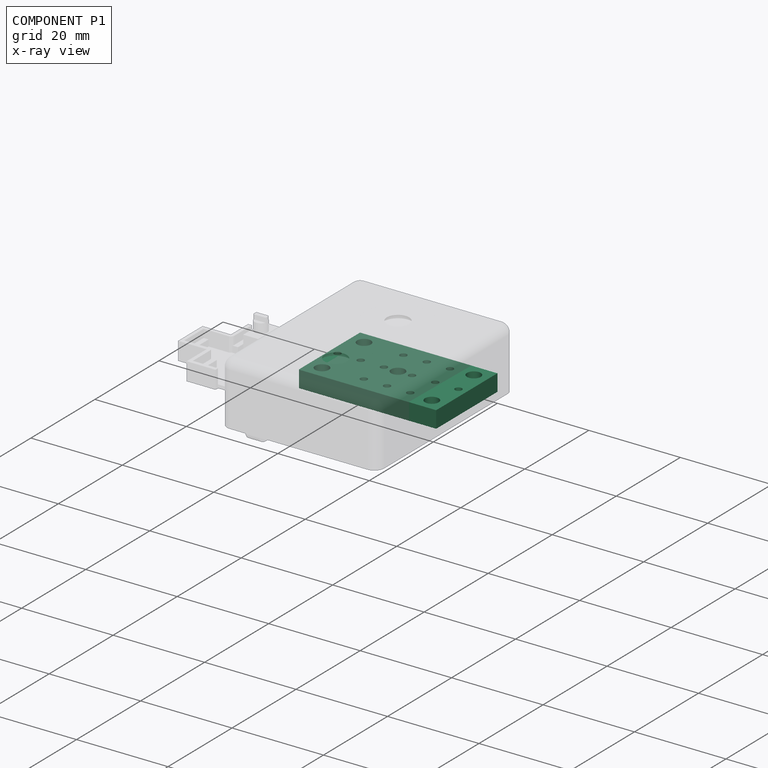
[diagram: component P1 — x-ray view]
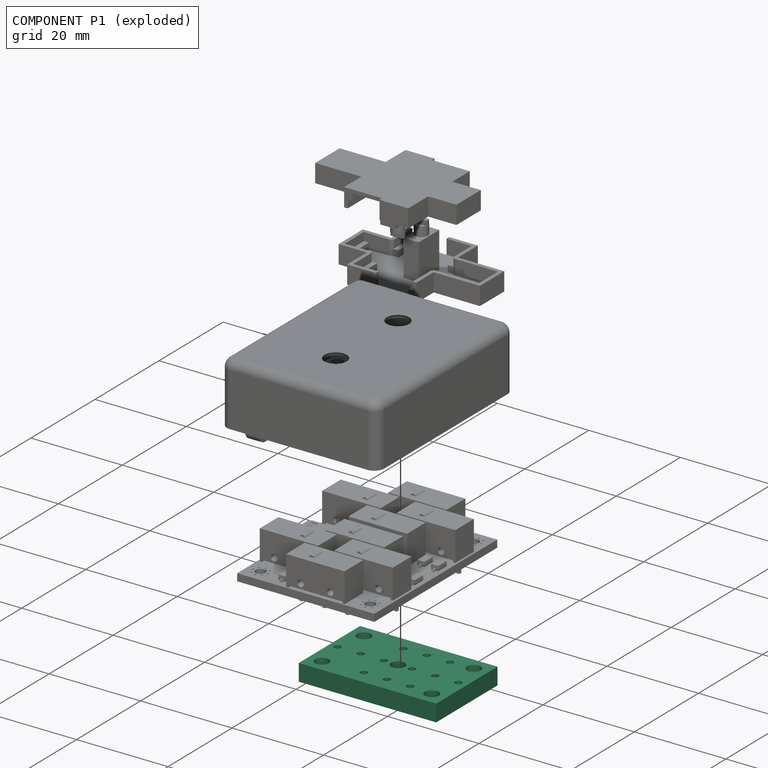
[diagram: component P1 — exploded]
COMPONENT P1 — recipe-attached ("test-base", modeled in this document).
Held by: resting contact with P0 (derived edge); resting contact with P2 (derived edge); resting contact with P3 (derived edge).
Construction recipe (the document's own serialized feature program — sketch geometry with constraints, then the solid features built on it; lengths are millimeters unless a unit is written):

FEATURE [PartDesign::ShapeBinder] CopyPcb_58ce
  Placement = pos=(-33.25,57.55,0) rot=(0,0,1;0rad)
  TraceSupport = false
FEATURE [Sketcher::SketchObject] Sketch006
  ArcFitTolerance = 1e-06
  AttachmentSupport = -> [CopyPcb_58ce]
  ExternalGeometry = -> [CopyPcb_58ce]
  FullyConstrained = false
  MakeInternals = false
  MapMode = 5
  Placement = pos=(-33.25,57.55,0) rot=(0,0,1;0rad)
  sketch-geometry (17):
    g0: LineSegment StartX=33.2429 StartY=-57.554 StartZ=0 EndX=33.2429 EndY=-76.7 EndZ=0
    g1: LineSegment StartX=33.2429 StartY=-76.7 StartZ=0 EndX=63.3009 EndY=-76.7 EndZ=0
    g2: LineSegment StartX=63.3009 StartY=-76.7 StartZ=0 EndX=63.3009 EndY=-57.554 EndZ=0
    g3: LineSegment StartX=63.3009 StartY=-57.554 StartZ=0 EndX=33.2429 EndY=-57.554 EndZ=0
    g4: Circle CenterX=45.1 CenterY=-60.954 CenterZ=0 NormalX=0 NormalY=0 NormalZ=1 AngleXU=0 Radius=0.75
    g5: Circle CenterX=50.18 CenterY=-60.9 CenterZ=0 NormalX=0 NormalY=0 NormalZ=1 AngleXU=0 Radius=0.75
    g6: Circle CenterX=55.26 CenterY=-60.9 CenterZ=0 NormalX=0 NormalY=0 NormalZ=1 AngleXU=0 Radius=0.75
    g7: Circle CenterX=56.38 CenterY=-67.1 CenterZ=0 NormalX=0 NormalY=0 NormalZ=1 AngleXU=0 Radius=0.75
    g8: Circle CenterX=61.46 CenterY=-67.1 CenterZ=0 NormalX=0 NormalY=0 NormalZ=1 AngleXU=0 Radius=0.75
    g9: Circle CenterX=51.3 CenterY=-67.1 CenterZ=0 NormalX=0 NormalY=0 NormalZ=1 AngleXU=0 Radius=0.75
    g10: Circle CenterX=48.23 CenterY=-67.1 CenterZ=0 NormalX=0 NormalY=0 NormalZ=1 AngleXU=0 Radius=1.5
    g11: Circle CenterX=45.16 CenterY=-67.1 CenterZ=0 NormalX=0 NormalY=0 NormalZ=1 AngleXU=0 Radius=0.75
    g12: Circle CenterX=40.08 CenterY=-67.1 CenterZ=0 NormalX=0 NormalY=0 NormalZ=1 AngleXU=0 Radius=0.75
    g13: Circle CenterX=35 CenterY=-67.1 CenterZ=0 NormalX=0 NormalY=0 NormalZ=1 AngleXU=0 Radius=0.75
    g14: Circle CenterX=45.1 CenterY=-73.3 CenterZ=0 NormalX=0 NormalY=0 NormalZ=1 AngleXU=0 Radius=0.75
    g15: Circle CenterX=50.18 CenterY=-73.3 CenterZ=0 NormalX=0 NormalY=0 NormalZ=1 AngleXU=0 Radius=0.75
    g16: Circle CenterX=55.26 CenterY=-73.3 CenterZ=0 NormalX=0 NormalY=0 NormalZ=1 AngleXU=0 Radius=0.75
  constraints (35):
    c: Coincident(g0,g1)
    c: Coincident(g1,g2)
    c: Coincident(g2,g3)
    c: Coincident(g3,g0)
    c: Vertical(g0)
    c: Vertical(g2)
    c: Horizontal(g1)
    c: Horizontal(g3)
    c: Diameter(g4) = 1.5
    c: Coincident(g5,g-11)
    c: Coincident(g6,g-10)
    c: Coincident(g7,g-8)
    c: Coincident(g8,g-9)
    c: Coincident(g9,g-7)
    c: Coincident(g10,g-6)
    c: Equal(g10,g-6)
    c: Coincident(g11,g-5)
    c: Coincident(g12,g-4)
    c: Coincident(g13,g-3)
    c: Coincident(g14,g-13)
    c: Coincident(g15,g-14)
    c: Coincident(g16,g-15)
    c: Equal(g4,g5)
    c: Equal(g5,g6)
    c: Equal(g6,g8)
    c: Equal(g8,g7)
    c: Equal(g7,g9)
    c: Equal(g9,g11)
    c: Equal(g11,g12)
    c: Equal(g12,g13)
    c: Equal(g13,g14)
    c: Equal(g14,g15)
    c: Equal(g15,g16)
    c: Distance(g4,g3) = 3.4
    c: Distance(g14,g1) = 3.4
FEATURE [PartDesign::Pad] Pad003
  Direction = (0,0,1)
  Length = 3.7
  Length2 = 10
  Placement = pos=(-33.25,57.55,0) rot=(0,0,1;0rad)
  Profile = -> Sketch006
  ReferenceAxis = -> Sketch006 [N_Axis]
  Refine = true
  Reversed = true
  Suppressed = false
  Type = 0
FEATURE [Sketcher::SketchObject] Sketch007
  ArcFitTolerance = 1e-06
  AttachmentSupport = -> [CopyPcb_58ce]
  ExternalGeometry = -> [CopyPcb_58ce,Pad003]
  FullyConstrained = false
  MakeInternals = false
  MapMode = 5
  Placement = pos=(-33.25,57.55,0) rot=(0,0,1;0rad)
  sketch-geometry (4):
    g0: Circle CenterX=36.2333 CenterY=-60.5667 CenterZ=0 NormalX=0 NormalY=0 NormalZ=1 AngleXU=0 Radius=1.5
    g1: Circle CenterX=60.25 CenterY=-73.7 CenterZ=0 NormalX=0 NormalY=0 NormalZ=1 AngleXU=0 Radius=1.5
    g2: Circle CenterX=36.2333 CenterY=-73.7 CenterZ=0 NormalX=0 NormalY=0 NormalZ=1 AngleXU=0 Radius=1.5
    g3: Circle CenterX=60.25 CenterY=-60.5667 CenterZ=0 NormalX=0 NormalY=0 NormalZ=1 AngleXU=0 Radius=1.5
  constraints (8):
    c: Diameter(g0) = 3
    c: Equal(g1,g2)
    c: Vertical(g0,g2)
    c: Coincident(g3,g-4)
    c: Equal(g3,g0)
    c: Vertical(g1,g3)
    c: Distance(g2,g-5) = 3
    c: Distance(g1,g-5) = 3
FEATURE [PartDesign::Pocket] Pocket003
  BaseFeature = -> Pad003
  Direction = (0,0,-1)
  Length = 2.5
  Length2 = 5
  Placement = pos=(-33.25,57.55,0) rot=(0,0,1;0rad)
  Profile = -> Sketch007
  ReferenceAxis = -> Sketch007 [N_Axis]
  Refine = true
  Suppressed = false
  Type = 0
FEATURE [PartDesign::Body] Body002  label="test-base"
  AllowCompound = false
  Group = -> [CopyPcb_58ce,Sketch006,Pad003,Sketch007,Pocket003]
  Origin = -> Origin014
  Tip = -> Pocket003
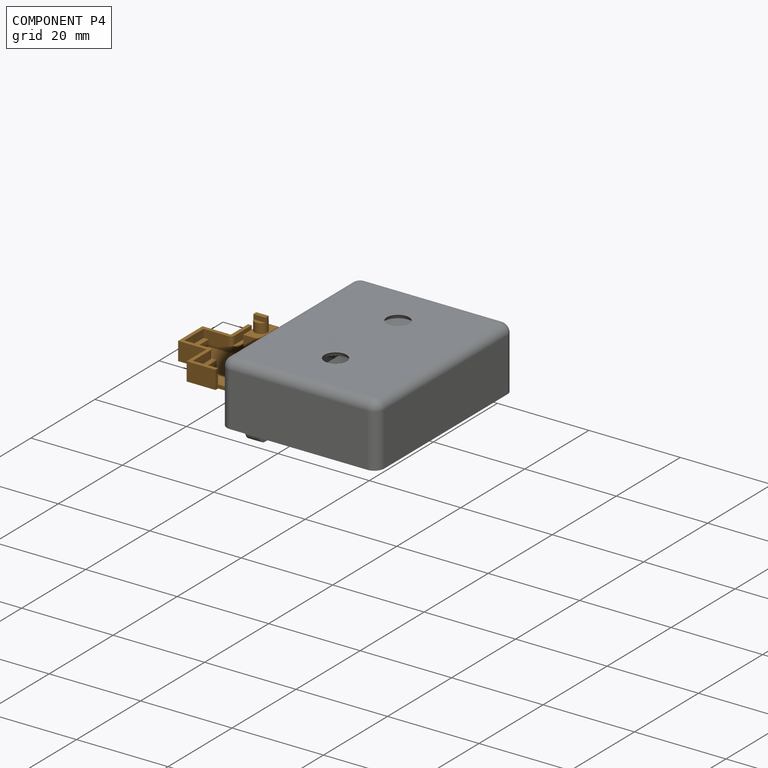
[diagram: component P4 — assembled]
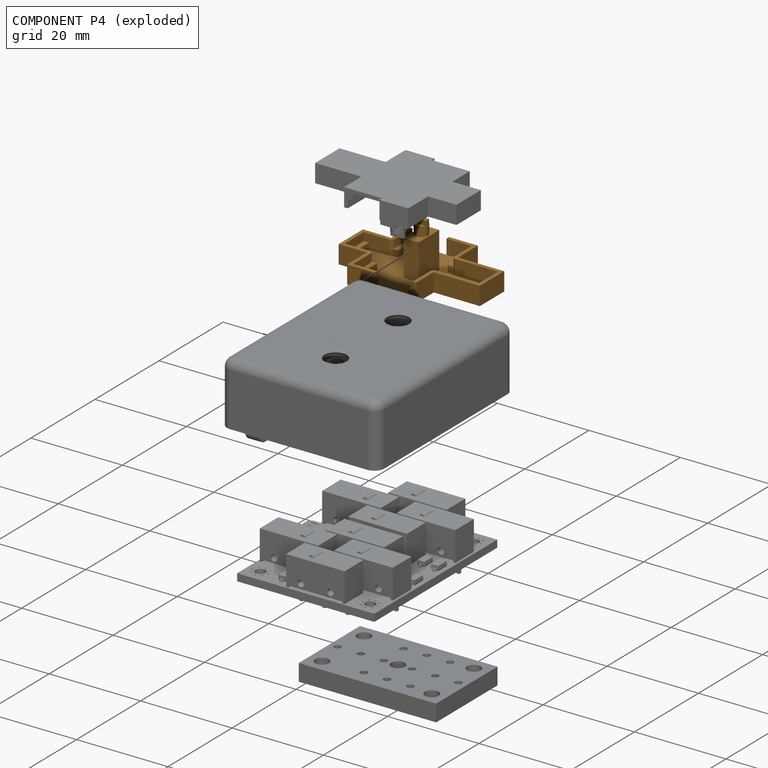
[diagram: component P4 — exploded]
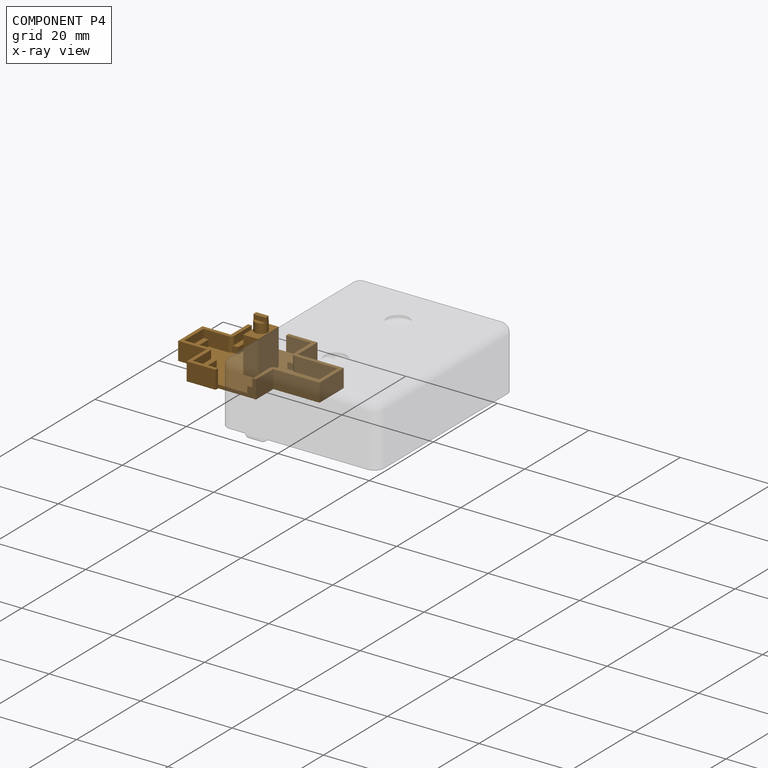
[diagram: component P4 — x-ray view]
COMPONENT P4 — geometry summary ("switch-aligner-print"; no construction recipe available for this part):
  bounding box: 30.9 x 20.0 x 11.8 mm
  tessellated surface: 1,214 triangles
  volume: 768 mm^3 (11% of its bounding box)
Held by: resting contact with P3 (derived edge).
PROVENANCE & LICENSES
Assembly and component geometry: a FreeCAD (.FCStd) document from a public repository crawl; components, placements and joints were extracted with FreeCAD and each solid tessellated.
Construction recipes: the document's own serialized feature recipes (and, for linked parts, the recipes of companion documents from the same project).
License: other.
Joints: native FreeCAD joints and A2plus constraints are mapped to standard mate types; edges marked 'derived from contact' connect touching components and are measured from the geometry, not modeled.
Verification: 3 of this assembly's 5 components carry a construction recipe (3 from this document itself); the rest are geometry-only. Every component's tessellation passed the extraction mesh gates (mesh-volume checksum against the B-rep where available, bounding-box inflation <= 2%).
Renders: orthographic iso camera (az 35 / el 25); the floor grid conveys scale (grid pitch printed in each image; no ruler). In the exploded view each component is displaced by its stored offset vector: the offsets alone carry the explosion direction (mate normal/axis signs are not orientation cues and do not encode it), and separation distances are assigned per mate-chain, not proportionally to assembly-order depth.
